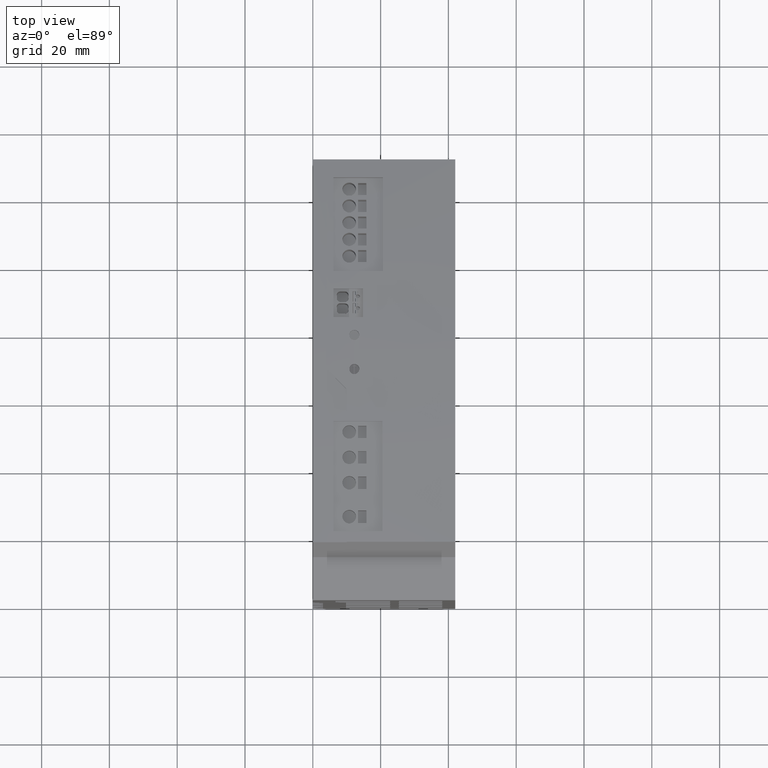
[diagram: clean part render]
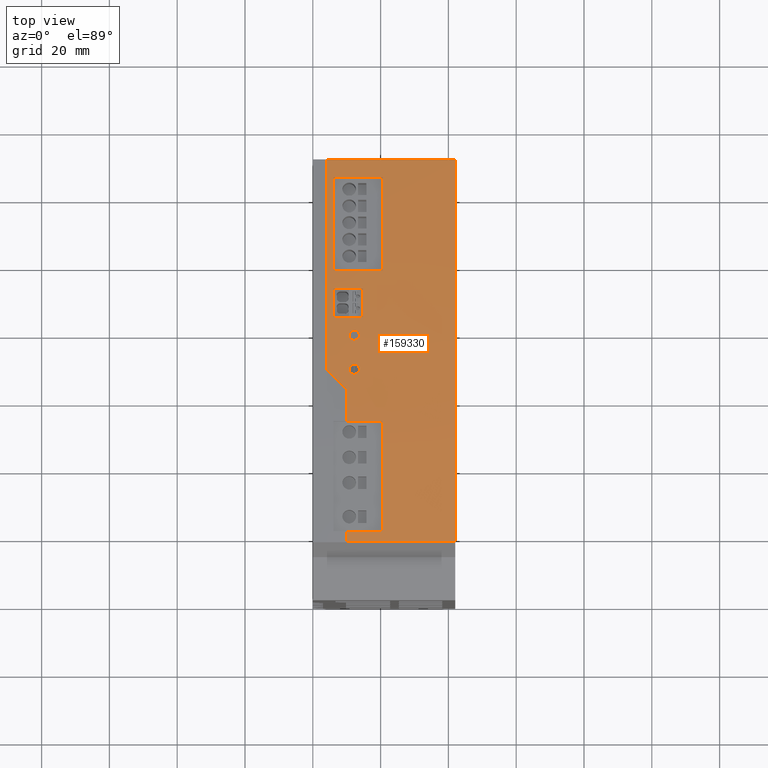
[diagram: same view with one face highlighted and labeled with its STEP entity id]
A machine part, top view. The second image highlights one B-rep face of the part: STEP entity #159330.
In plain terms, the highlighted cylindrical surface (partial cylindrical patch) has radius 660 mm, axis along (1, 0, 0).
Its self-contained STEP definition (entity closure, byte-faithful):
#156490=CARTESIAN_POINT('',(-500.,17.,-63.5));
#156500=DIRECTION('',(0.,0.,-1.));
#156510=DIRECTION('',(-1.,0.,0.));
#156520=AXIS2_PLACEMENT_3D('',#156490,#156500,#156510);
#156530=CYLINDRICAL_SURFACE('',#156520,660.);
#156540=CARTESIAN_POINT('',(154.280995800265,67.9587288529203,
-20.7299999999997));
#156550=DIRECTION('',(1.,3.46944695195361E-17,3.65926689433575E-33));
#156560=DIRECTION('',(5.29630734706491E-34,9.0205620750794E-17,-1.));
#156570=AXIS2_PLACEMENT_3D('',#156540,#156550,#156560);
#156580=CYLINDRICAL_SURFACE('',#156570,1.5);
#156590=CARTESIAN_POINT('',(-500.,17.,-18.398386621662));
#156600=DIRECTION('',(0.,0.,-1.));
#156610=DIRECTION('',(-1.,0.,0.));
#156620=AXIS2_PLACEMENT_3D('',#156590,#156600,#156610);
#156630=CYLINDRICAL_SURFACE('',#156620,660.);
#156640=CARTESIAN_POINT('',(158.029792603416,67.9587288529203,
-19.2299999999997));
#156650=CARTESIAN_POINT('',(158.012688032471,68.1796000858701,
-19.2299999999997));
#156660=CARTESIAN_POINT('',(157.995519683817,68.399770508002,
-19.2792993557918));
#156670=CARTESIAN_POINT('',(157.979818519135,68.5999847047069,
-19.3739797447861));
#156680=CARTESIAN_POINT('',(157.964000697609,68.8016864570805,
-19.4693635921349));
#156690=CARTESIAN_POINT('',(157.949987585268,68.9791665689156,
-19.6083488289723));
#156700=CARTESIAN_POINT('',(157.938841787813,69.1198663362742,
-19.7803896879502));
#156710=CARTESIAN_POINT('',(157.921522858588,69.3384930718395,
-20.0477158682865));
#156720=CARTESIAN_POINT('',(157.911927478911,69.4585139041322,
-20.3843419731589));
#156730=CARTESIAN_POINT('',(157.911910363118,69.4587285621084,
-20.7290659573551));
#156740=CARTESIAN_POINT('',(157.911893194149,69.458943886983,
-21.0748609285419));
#156750=CARTESIAN_POINT('',(157.921484523435,69.3389741435532,
-21.4113068741473));
#156760=CARTESIAN_POINT('',(157.938788245308,69.1205422294906,
-21.678783261879));
#156770=CARTESIAN_POINT('',(157.949869098521,68.9806641157148,
-21.8500681803674));
#156780=CARTESIAN_POINT('',(157.964004208822,68.8016363513592,
-21.9904131604149));
#156790=CARTESIAN_POINT('',(157.979711807698,68.6013454229517,
-22.0853759419143));
#156800=CARTESIAN_POINT('',(157.995402662897,68.4012679967328,
-22.1802374968538));
#156810=CARTESIAN_POINT('',(158.012706454462,68.1793622027997,
-22.2299999999997));
#156820=CARTESIAN_POINT('',(158.029792603416,67.9587288529203,
-22.2299999999997));
#156830=B_SPLINE_CURVE_WITH_KNOTS('',3,(#156640,#156650,#156660,#156670,
#156680,#156690,#156700,#156710,#156720,#156730,#156740,#156750,#156760,
#156770,#156780,#156790,#156800,#156810,#156820),.UNSPECIFIED.,.F.,.F.,(
4,3,3,3,3,3,4),(0.,0.664478527281672,1.33107518410743,2.35887480644266,
3.38747304450191,4.05362981213941,4.71961767736858),.UNSPECIFIED.);
#156840=SURFACE_CURVE('',#156830,(#156580,#156630),.CURVE_3D.);
#156850=CARTESIAN_POINT('',(158.029792603416,67.9587288529203,
-19.2299999999997));
#156860=VERTEX_POINT('',#156850);
#156870=CARTESIAN_POINT('',(158.029792603416,67.9587288529203,
-22.2299999999997));
#156880=VERTEX_POINT('',#156870);
#156890=EDGE_CURVE('',#156860,#156880,#156840,.T.);
#156900=ORIENTED_EDGE('',*,*,#156890,.T.);
#156910=CARTESIAN_POINT('',(158.029792603416,67.9587288529203,
-22.2299999999997));
#156920=CARTESIAN_POINT('',(158.04692137345,67.7375451372586,
-22.2299999999997));
#156930=CARTESIAN_POINT('',(158.063905936627,67.5166997386272,
-22.180829384476));
#156940=CARTESIAN_POINT('',(158.079388881161,67.3141921310253,
-22.0844638843941));
#156950=CARTESIAN_POINT('',(158.09475576062,67.1132025848409,
-21.9888207707419));
#156960=CARTESIAN_POINT('',(158.108310884557,66.9346692928162,
-21.8487432361232));
#156970=CARTESIAN_POINT('',(158.118994418335,66.7934652921447,
-21.6745426586068));
#156980=CARTESIAN_POINT('',(158.135306067604,66.5778746287617,
-21.4085727293565));
#156990=CARTESIAN_POINT('',(158.144237957733,66.4586902681029,
-21.0735657115957));
#157000=CARTESIAN_POINT('',(158.144235057421,66.4587288623753,
-20.7298315808552));
#157010=CARTESIAN_POINT('',(158.144232158079,66.4587674437373,
-20.3862124346123));
#157020=CARTESIAN_POINT('',(158.135296444591,66.5780025995917,
-20.0511658317939));
#157030=CARTESIAN_POINT('',(158.118980798919,66.7936452992936,
-19.7852353133879));
#157040=CARTESIAN_POINT('',(158.108290358572,66.9349400702038,
-19.6109906404724));
#157050=CARTESIAN_POINT('',(158.094747096556,67.1133170804352,
-19.471071539622));
#157060=CARTESIAN_POINT('',(158.079366529189,67.314484480535,
-19.3753970365267));
#157070=CARTESIAN_POINT('',(158.063879893421,67.5170391834405,
-19.2790627371298));
#157080=CARTESIAN_POINT('',(158.046907495525,67.7377243428264,
-19.2299999999997));
#157090=CARTESIAN_POINT('',(158.029792603416,67.9587288529203,
-19.2299999999997));
#157100=B_SPLINE_CURVE_WITH_KNOTS('',3,(#156910,#156920,#156930,#156940,
#156950,#156960,#156970,#156980,#156990,#157000,#157010,#157020,#157030,
#157040,#157050,#157060,#157070,#157080,#157090),.UNSPECIFIED.,.F.,.F.,(
4,3,3,3,3,3,4),(0.,0.668072177321726,1.33748519664977,2.35980041623859,
3.3820649543803,4.0515163356181,4.71926399539062),.UNSPECIFIED.);
#157110=SURFACE_CURVE('',#157100,(#156580,#156630),.CURVE_3D.);
#157120=EDGE_CURVE('',#156880,#156860,#157110,.T.);
#157130=ORIENTED_EDGE('',*,*,#157120,.T.);
#157140=EDGE_LOOP('',(#157130,#156900));
#157150=FACE_BOUND('',#157140,.T.);
#157160=CARTESIAN_POINT('',(-500.,17.,-14.5646454457073));
#157170=DIRECTION('',(0.,0.,-1.));
#157180=DIRECTION('',(-1.,0.,0.));
#157190=AXIS2_PLACEMENT_3D('',#157160,#157170,#157180);
#157200=CIRCLE('',#157190,660.);
#157210=CARTESIAN_POINT('',(151.160181954083,124.658801022145,
-14.5646454457073));
#157220=VERTEX_POINT('',#157210);
#157230=CARTESIAN_POINT('',(155.140528377224,96.9430302003369,
-14.5646454457073));
#157240=VERTEX_POINT('',#157230);
#157250=EDGE_CURVE('',#157220,#157240,#157200,.T.);
#157260=ORIENTED_EDGE('',*,*,#157250,.F.);
#157270=CARTESIAN_POINT('',(155.140528377224,96.9430302003369,-63.5));
#157280=DIRECTION('',(0.,0.,-1.));
#157290=VECTOR('',#157280,1.);
#157300=LINE('',#157270,#157290);
#157310=CARTESIAN_POINT('',(155.140528377224,96.9430302003369,
-29.1646454457073));
#157320=VERTEX_POINT('',#157310);
#157330=EDGE_CURVE('',#157240,#157320,#157300,.T.);
#157340=ORIENTED_EDGE('',*,*,#157330,.F.);
#157350=CARTESIAN_POINT('',(-500.,17.,-29.1646454457073));
#157360=DIRECTION('',(0.,0.,-1.));
#157370=DIRECTION('',(-1.,0.,0.));
#157380=AXIS2_PLACEMENT_3D('',#157350,#157360,#157370);
#157390=CIRCLE('',#157380,660.);
#157400=CARTESIAN_POINT('',(151.160181954083,124.658801022145,
-29.1646454457073));
#157410=VERTEX_POINT('',#157400);
#157420=EDGE_CURVE('',#157410,#157320,#157390,.T.);
#157430=ORIENTED_EDGE('',*,*,#157420,.T.);
#157440=CARTESIAN_POINT('',(151.160181954083,124.658801022145,-63.5));
#157450=DIRECTION('',(0.,0.,-1.));
#157460=VECTOR('',#157450,1.);
#157470=LINE('',#157440,#157460);
#157480=EDGE_CURVE('',#157220,#157410,#157470,.T.);
#157490=ORIENTED_EDGE('',*,*,#157480,.T.);
#157500=EDGE_LOOP('',(#157490,#157430,#157340,#157260));
#157510=FACE_BOUND('',#157500,.T.);
#157520=CARTESIAN_POINT('',(-500.,17.,-50.5));
#157530=DIRECTION('',(0.,0.,-1.));
#157540=DIRECTION('',(-1.,0.,0.));
#157550=AXIS2_PLACEMENT_3D('',#157520,#157530,#157540);
#157560=CIRCLE('',#157550,660.);
#157570=CARTESIAN_POINT('',(150.254565535683,130.,-50.5));
#157580=VERTEX_POINT('',#157570);
#157590=CARTESIAN_POINT('',(160.,16.9999999999951,-50.5));
#157600=VERTEX_POINT('',#157590);
#157610=EDGE_CURVE('',#157580,#157600,#157560,.T.);
#157620=ORIENTED_EDGE('',*,*,#157610,.F.);
#157630=CARTESIAN_POINT('',(160.,16.9999999999951,-63.5));
#157640=DIRECTION('',(0.,0.,-1.));
#157650=VECTOR('',#157640,1.);
#157660=LINE('',#157630,#157650);
#157670=CARTESIAN_POINT('',(160.,16.9999999999954,-18.5));
#157680=VERTEX_POINT('',#157670);
#157690=EDGE_CURVE('',#157680,#157600,#157660,.T.);
#157700=ORIENTED_EDGE('',*,*,#157690,.T.);
#157710=CARTESIAN_POINT('',(-500.,17.,-18.5));
#157720=DIRECTION('',(0.,0.,-1.));
#157730=DIRECTION('',(-1.,0.,0.));
#157740=AXIS2_PLACEMENT_3D('',#157710,#157720,#157730);
#157750=CIRCLE('',#157740,660.);
#157760=CARTESIAN_POINT('',(159.992902212166,20.0608870547941,-18.5));
#157770=VERTEX_POINT('',#157760);
#157780=EDGE_CURVE('',#157770,#157680,#157750,.T.);
#157790=ORIENTED_EDGE('',*,*,#157780,.T.);
#157800=CARTESIAN_POINT('',(159.992902212166,20.0608870547941,-63.5));
#157810=DIRECTION('',(0.,0.,-1.));
#157820=VECTOR('',#157810,1.);
#157830=LINE('',#157800,#157820);
#157840=CARTESIAN_POINT('',(159.992902212166,20.0608870547941,-29.1));
#157850=VERTEX_POINT('',#157840);
#157860=EDGE_CURVE('',#157770,#157850,#157830,.T.);
#157870=ORIENTED_EDGE('',*,*,#157860,.F.);
#157880=CARTESIAN_POINT('',(-500.,17.,-29.1));
#157890=DIRECTION('',(0.,0.,-1.));
#157900=DIRECTION('',(-1.,0.,0.));
#157910=AXIS2_PLACEMENT_3D('',#157880,#157890,#157900);
#157920=CIRCLE('',#157910,660.);
#157930=CARTESIAN_POINT('',(159.042033303062,52.5471284320709,-29.1));
#157940=VERTEX_POINT('',#157930);
#157950=EDGE_CURVE('',#157940,#157850,#157920,.T.);
#157960=ORIENTED_EDGE('',*,*,#157950,.T.);
#157970=CARTESIAN_POINT('',(159.042033303062,52.5471284320709,-63.5));
#157980=DIRECTION('',(0.,0.,-1.));
#157990=VECTOR('',#157980,1.);
#158000=LINE('',#157970,#157990);
#158010=CARTESIAN_POINT('',(159.042033303062,52.5471284320709,-18.5));
#158020=VERTEX_POINT('',#158010);
#158030=EDGE_CURVE('',#158020,#157940,#158000,.T.);
#158040=ORIENTED_EDGE('',*,*,#158030,.T.);
#158050=CARTESIAN_POINT('',(158.464122029439,61.9999999999966,-18.5));
#158060=VERTEX_POINT('',#158050);
#158070=EDGE_CURVE('',#158060,#158020,#157750,.T.);
#158080=ORIENTED_EDGE('',*,*,#158070,.T.);
#158090=CARTESIAN_POINT('',(-500.,17.,-63.4999999999965));
#158100=DIRECTION('',(0.,-0.707106781186548,0.707106781186548));
#158110=DIRECTION('',(0.,0.707106781186548,0.707106781186548));
#158120=AXIS2_PLACEMENT_3D('',#158090,#158100,#158110);
#158130=ELLIPSE('',#158120,933.380951166243,660.);
#158140=CARTESIAN_POINT('',(158.026595207215,67.9999999999965,-12.5));
#158150=VERTEX_POINT('',#158140);
#158160=EDGE_CURVE('',#158060,#158150,#158130,.T.);
#158170=ORIENTED_EDGE('',*,*,#158160,.F.);
#158180=CARTESIAN_POINT('',(-500.,17.,-12.5));
#158190=DIRECTION('',(0.,0.,-1.));
#158200=DIRECTION('',(-1.,0.,0.));
#158210=AXIS2_PLACEMENT_3D('',#158180,#158190,#158200);
#158220=CIRCLE('',#158210,660.);
#158230=CARTESIAN_POINT('',(150.254565535683,130.,-12.5));
#158240=VERTEX_POINT('',#158230);
#158250=EDGE_CURVE('',#158240,#158150,#158220,.T.);
#158260=ORIENTED_EDGE('',*,*,#158250,.T.);
#158270=CARTESIAN_POINT('',(150.254565535683,130.,-63.5));
#158280=DIRECTION('',(0.,0.,-1.));
#158290=VECTOR('',#158280,1.);
#158300=LINE('',#158270,#158290);
#158310=EDGE_CURVE('',#158240,#157580,#158300,.T.);
#158320=ORIENTED_EDGE('',*,*,#158310,.F.);
#158330=EDGE_LOOP('',(#158320,#158260,#158170,#158080,#158040,#157960,
#157870,#157790,#157700,#157620));
#158340=FACE_OUTER_BOUND('',#158330,.T.);
#158350=CARTESIAN_POINT('',(-500.,17.,-34.5));
#158360=DIRECTION('',(0.,0.,-1.));
#158370=DIRECTION('',(-1.,0.,0.));
#158380=AXIS2_PLACEMENT_3D('',#158350,#158360,#158370);
#158390=CYLINDRICAL_SURFACE('',#158380,660.);
#158400=CARTESIAN_POINT('',(155.948689465334,77.9759766660442,
-20.7299999999997));
#158410=DIRECTION('',(0.999450215941757,0.0331551783885286,
-4.49378157317781E-13));
#158420=DIRECTION('',(0.0331551783885286,-0.999450215941757,
-4.44917550544651E-28));
#158430=AXIS2_PLACEMENT_3D('',#158400,#158410,#158420);
#158440=CYLINDRICAL_SURFACE('',#158430,1.5);
#158450=CARTESIAN_POINT('',(157.310679899905,76.5203334124106,
-20.7300000000003));
#158460=CARTESIAN_POINT('',(157.310679899905,76.5203334124106,
-20.951131669806));
#158470=CARTESIAN_POINT('',(157.306285642225,76.5689165284247,
-21.1691528342552));
#158480=CARTESIAN_POINT('',(157.297728191571,76.6631922897164,
-21.3696250642827));
#158490=CARTESIAN_POINT('',(157.289217904857,76.7569484550907,
-21.5689924021209));
#158500=CARTESIAN_POINT('',(157.276781369884,76.8937555190579,
-21.7458494051675));
#158510=CARTESIAN_POINT('',(157.261209416236,77.0641540080834,
-21.8868422707925));
#158520=CARTESIAN_POINT('',(157.236700976378,77.3323413668883,
-22.108748606104));
#158530=CARTESIAN_POINT('',(157.205474530528,77.6719418075569,
-22.23015194908));
#158540=CARTESIAN_POINT('',(157.173412017708,78.017264253684,
-22.2299998552427));
#158550=CARTESIAN_POINT('',(157.141321350655,78.3628899289603,
-22.229847627851));
#158560=CARTESIAN_POINT('',(157.109500394827,78.7023247434701,
-22.1079885024508));
#158570=CARTESIAN_POINT('',(157.084238157155,78.9701861013142,
-21.8858711686493));
#158580=CARTESIAN_POINT('',(157.068182097359,79.1404322225881,
-21.7446988291535));
#158590=CARTESIAN_POINT('',(157.055239876739,79.2769667668292,
-21.5678433665345));
#158600=CARTESIAN_POINT('',(157.046355210702,79.3705628027553,
-21.3682745105112));
#158610=CARTESIAN_POINT('',(157.037422100097,79.4646691808215,
-21.1676174845021));
#158620=CARTESIAN_POINT('',(157.032840873837,79.5127668021109,
-20.9493183291902));
#158630=CARTESIAN_POINT('',(157.032840873837,79.5127668021109,
-20.7300000000002));
#158640=B_SPLINE_CURVE_WITH_KNOTS('',3,(#158450,#158460,#158470,#158480,
#158490,#158500,#158510,#158520,#158530,#158540,#158550,#158560,#158570,
#158580,#158590,#158600,#158610,#158620,#158630),.UNSPECIFIED.,.F.,.F.,(
4,3,3,3,3,3,4),(0.,0.6608586094181,1.32163859158094,2.35887274422299,
3.39638697888353,4.05718574375133,4.71656156044848),.UNSPECIFIED.);
#158650=SURFACE_CURVE('',#158640,(#158390,#158440),.CURVE_3D.);
#158660=CARTESIAN_POINT('',(157.310679899905,76.5203334124105,
-20.7300000000003));
#158670=VERTEX_POINT('',#158660);
#158680=CARTESIAN_POINT('',(157.032840873837,79.512766802111,
-20.7300000000002));
#158690=VERTEX_POINT('',#158680);
#158700=EDGE_CURVE('',#158670,#158690,#158650,.T.);
#158710=ORIENTED_EDGE('',*,*,#158700,.F.);
#158720=CARTESIAN_POINT('',(157.032840873837,79.5127668021109,
-20.7300000000002));
#158730=CARTESIAN_POINT('',(157.032840873837,79.5127668021109,
-20.5098390586535));
#158740=CARTESIAN_POINT('',(157.037541046169,79.4634167454589,
-20.2893852508037));
#158750=CARTESIAN_POINT('',(157.046393612281,79.3701582577363,
-20.0908636147361));
#158760=CARTESIAN_POINT('',(157.055307332605,79.2762555331621,
-19.8909705758406));
#158770=CARTESIAN_POINT('',(157.068385012731,79.138282172901,
-19.7133826298181));
#158780=CARTESIAN_POINT('',(157.084290075157,78.9696356002483,
-19.5736725639344));
#158790=CARTESIAN_POINT('',(157.109677361863,78.7004459059599,
-19.3506706414365));
#158800=CARTESIAN_POINT('',(157.141378707656,78.3622706832107,
-19.2302126754005));
#158810=CARTESIAN_POINT('',(157.173387678325,78.0175263952389,
-19.2300002832375));
#158820=CARTESIAN_POINT('',(157.20547821803,77.6719035892059,
-19.2297873498317));
#158830=CARTESIAN_POINT('',(157.236704873799,77.3322987200918,
-19.3512865645854));
#158840=CARTESIAN_POINT('',(157.261209443436,77.0641537104487,
-19.5731579754801));
#158850=CARTESIAN_POINT('',(157.276783121663,76.8937363490922,
-19.714166530722));
#158860=CARTESIAN_POINT('',(157.289214140686,76.7569899278685,
-19.8909175510223));
#158870=CARTESIAN_POINT('',(157.297728399581,76.6631899981162,
-20.0903798087024));
#158880=CARTESIAN_POINT('',(157.306283793619,76.5689368905108,
-20.2908057331777));
#158890=CARTESIAN_POINT('',(157.310679899905,76.5203334124106,
-20.5087777658391));
#158900=CARTESIAN_POINT('',(157.310679899905,76.5203334124106,
-20.7300000000003));
#158910=B_SPLINE_CURVE_WITH_KNOTS('',3,(#158720,#158730,#158740,#158750,
#158760,#158770,#158780,#158790,#158800,#158810,#158820,#158830,#158840,
#158850,#158860,#158870,#158880,#158890,#158900),.UNSPECIFIED.,.F.,.F.,(
4,3,3,3,3,3,4),(0.,0.660328683306188,1.32089146661013,2.35742553214093,
3.39492334446352,4.05570832829396,4.71656154878348),.UNSPECIFIED.);
#158920=SURFACE_CURVE('',#158910,(#158390,#158440),.CURVE_3D.);
#158930=EDGE_CURVE('',#158690,#158670,#158920,.T.);
#158940=ORIENTED_EDGE('',*,*,#158930,.F.);
#158950=EDGE_LOOP('',(#158940,#158710));
#158960=FACE_BOUND('',#158950,.T.);
#158970=CARTESIAN_POINT('',(-500.,17.,-23.3));
#158980=DIRECTION('',(0.,0.,-1.));
#158990=DIRECTION('',(-1.,0.,0.));
#159000=AXIS2_PLACEMENT_3D('',#158970,#158980,#158990);
#159010=CIRCLE('',#159000,660.);
#159020=CARTESIAN_POINT('',(155.753335866467,91.7499999999999,-23.3));
#159030=VERTEX_POINT('',#159020);
#159040=CARTESIAN_POINT('',(156.666534475452,83.25,-23.3));
#159050=VERTEX_POINT('',#159040);
#159060=EDGE_CURVE('',#159030,#159050,#159010,.T.);
#159070=ORIENTED_EDGE('',*,*,#159060,.T.);
#159080=CARTESIAN_POINT('',(155.753335866467,91.7499999999999,-63.5));
#159090=DIRECTION('',(0.,0.,-1.));
#159100=VECTOR('',#159090,1.);
#159110=LINE('',#159080,#159100);
#159120=CARTESIAN_POINT('',(155.753335866467,91.7499999999999,-14.6));
#159130=VERTEX_POINT('',#159120);
#159140=EDGE_CURVE('',#159130,#159030,#159110,.T.);
#159150=ORIENTED_EDGE('',*,*,#159140,.T.);
#159160=CARTESIAN_POINT('',(-500.,17.,-14.6));
#159170=DIRECTION('',(0.,0.,-1.));
#159180=DIRECTION('',(-1.,0.,0.));
#159190=AXIS2_PLACEMENT_3D('',#159160,#159170,#159180);
#159200=CIRCLE('',#159190,660.);
#159210=CARTESIAN_POINT('',(156.666534475452,83.25,-14.6));
#159220=VERTEX_POINT('',#159210);
#159230=EDGE_CURVE('',#159130,#159220,#159200,.T.);
#159240=ORIENTED_EDGE('',*,*,#159230,.F.);
#159250=CARTESIAN_POINT('',(156.666534475452,83.25,-63.5));
#159260=DIRECTION('',(0.,0.,-1.));
#159270=VECTOR('',#159260,1.);
#159280=LINE('',#159250,#159270);
#159290=EDGE_CURVE('',#159220,#159050,#159280,.T.);
#159300=ORIENTED_EDGE('',*,*,#159290,.F.);
#159310=EDGE_LOOP('',(#159300,#159240,#159150,#159070));
#159320=FACE_BOUND('',#159310,.T.);
#159330=ADVANCED_FACE('',(#157150,#157510,#158340,#158960,#159320),
#156530,.T.);